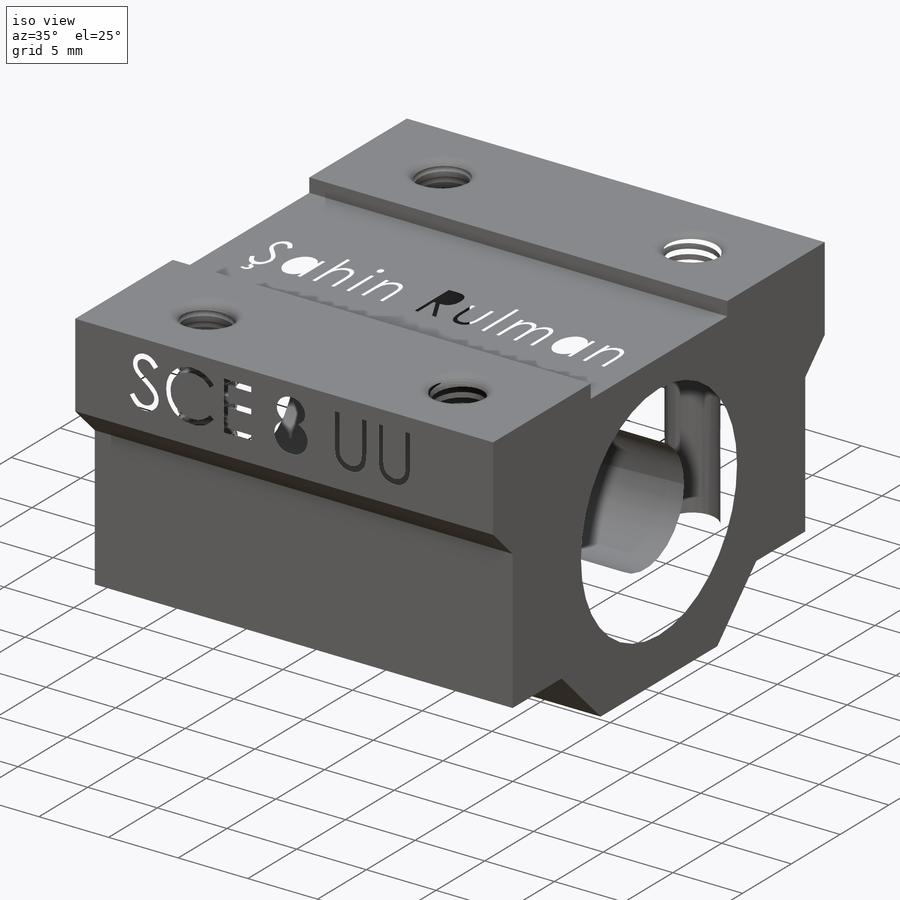
[diagram: iso view]
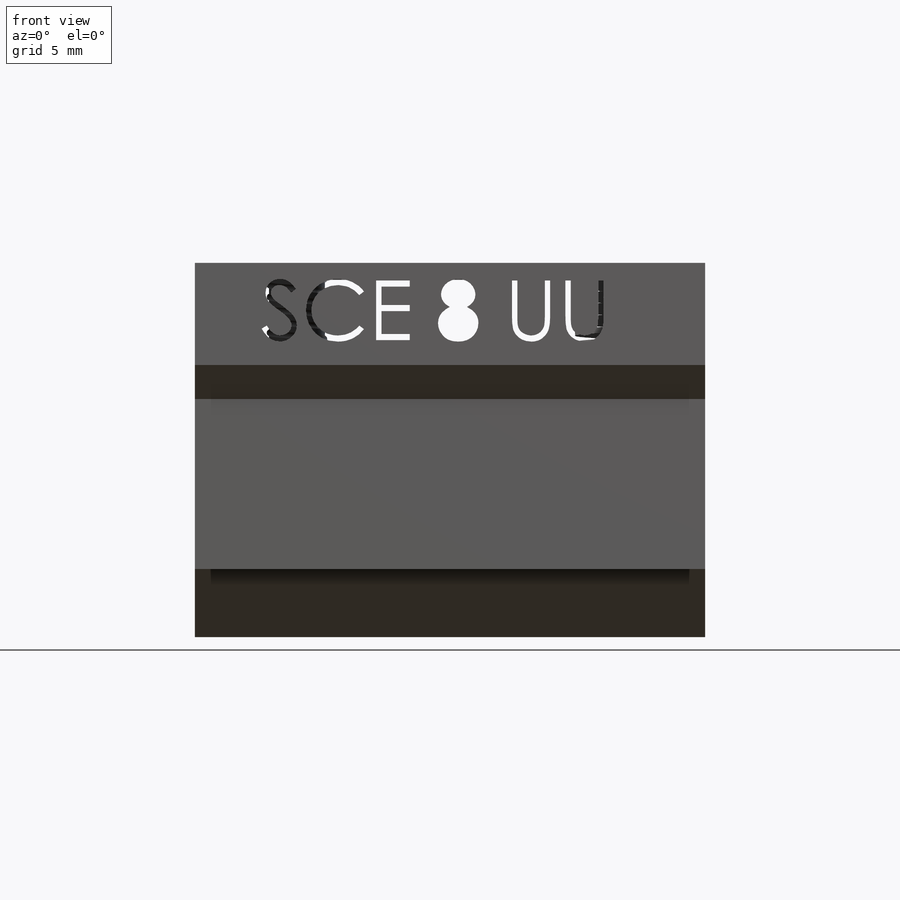
[diagram: front view]
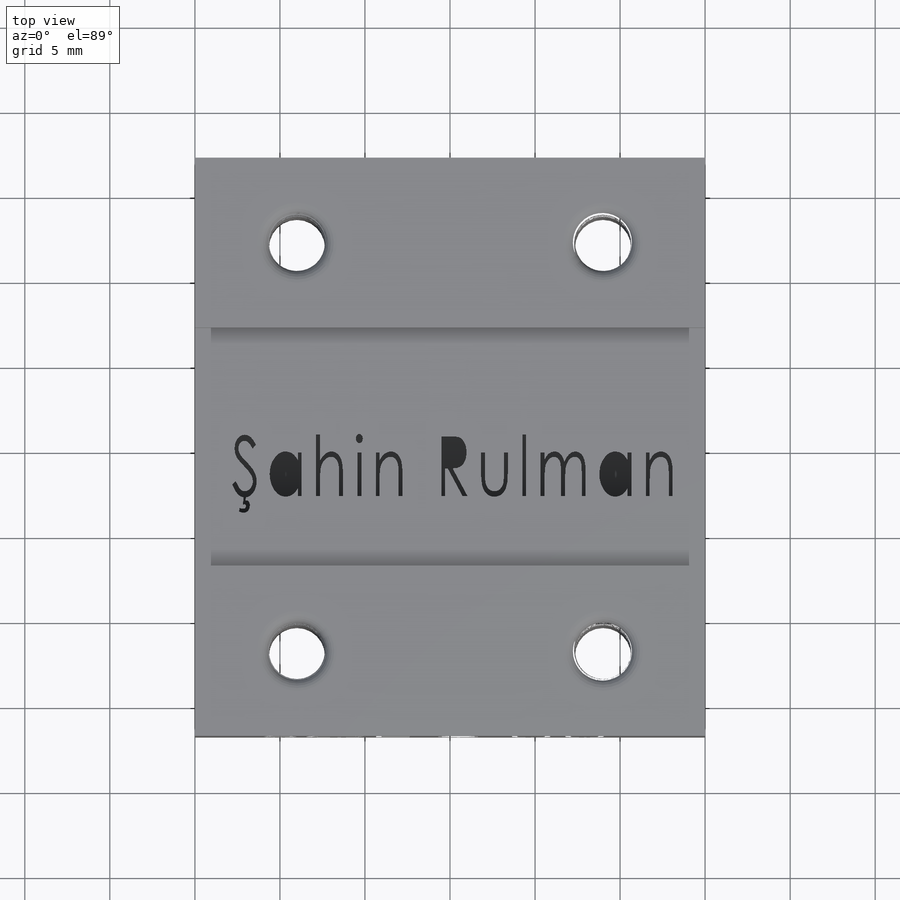
[diagram: top view]
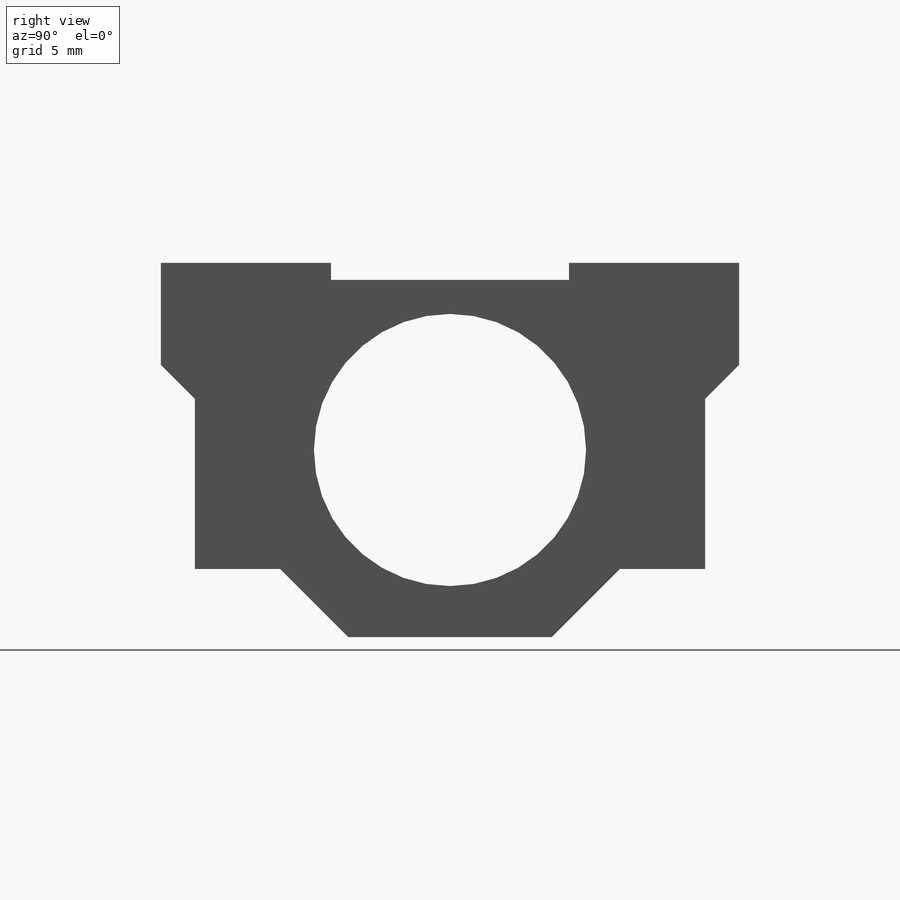
[diagram: right view]
SOLIDWORKS PART (.sldprt)
format: sldprt  version: not decoded by parser v0  size: 1,488,384 bytes
history: native  units: mm
features: sketch x8, cut_extrude x5, mirror x3, material x1, extrude x1, fillet x1, helix x1, plane x1, sweep x1 (+11 scaffold rows collapsed)
feature tree (33):
  scaffold x11  (default folders/planes/origin — collapsed)
  material  "Material <not specified>"
  sketch  "Sketch1"  dims[c1.D1=34.0mm c1.D2=17.0mm c1.D3=22.0mm c2.D1=34.0mm c2.D2=17.0mm c2.D3=22.0mm c2.D4=18.0mm c2.D5=2.0mm c2.D6=2.0mm c2.D7=6.0mm c2.D8=4.0mm c2.D9=6.0mm c2.D10=18.0mm c2.D11=22.0mm c2.D15=1.0mm c3.D11=12.0mm c3.D12=12.0mm c3.D13=5.0mm c3.D14=5.0mm]
  extrude  "Boss-Extrude1"  Depth=30mm
  sketch  "Sketch2"  dims[D2=8.0mm D1=11.0mm]
  cut_extrude  "Cut-Extrude1"  [1 undecoded]
  sketch  "Sketch3"  dims[c1.D5=3.3mm c1.D3=5.0mm c1.D1=12.0mm c1.D2=12.0mm c2.D3=9.0mm c2.D4=9.0mm]
  cut_extrude  "Cut-Extrude2"  [1 undecoded]
  fillet  "Fillet1"  Radius=0.7mm
  sketch  "Sketch4"
  helix  "Helix/Spiral1"  Pitch=8mm
  plane  "Plane1"
  sketch  "Sketch5"  dims[D1=0.35mm]
  sweep  "Cut-Sweep1"
  mirror  "Mirror1"
  mirror  "Mirror2"
  sketch  "Sketch6"
  cut_extrude  "Cut-Extrude3"  Depth=2mm
  sketch  "Sketch7"
  cut_extrude  "Cut-Extrude4"  Depth=2mm
  sketch  "Sketch8"  dims[D1=16.0mm]
  cut_extrude  "Cut-Extrude5"  Depth=1mm
  mirror  "Mirror3"
decode coverage: 11 of 20 modeling features carry decoded parameters
note: 2 parameter values undecoded
note: suppression state not decoded; provenance and decode notes live in map.json
